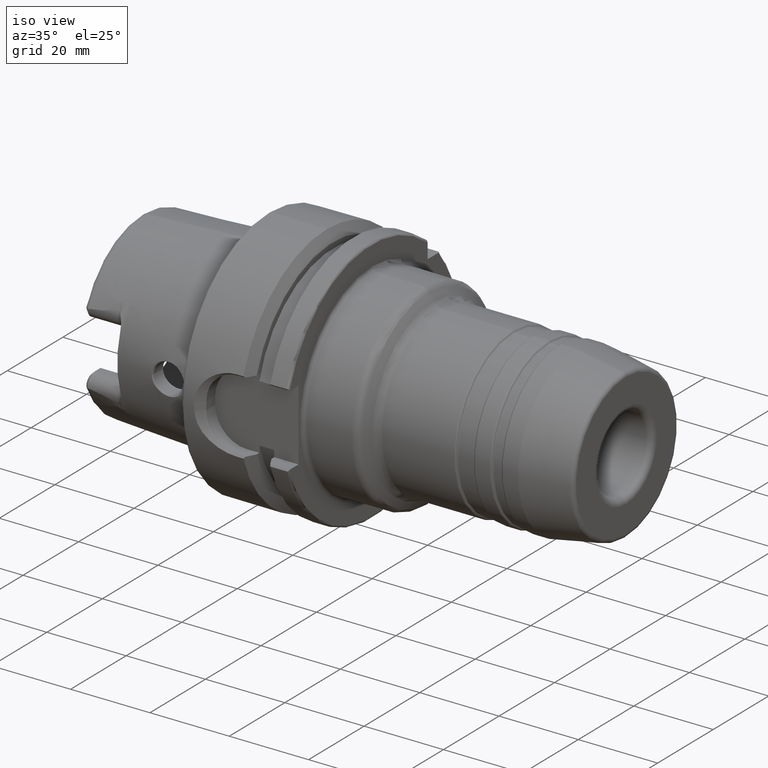
[diagram: clean part render]
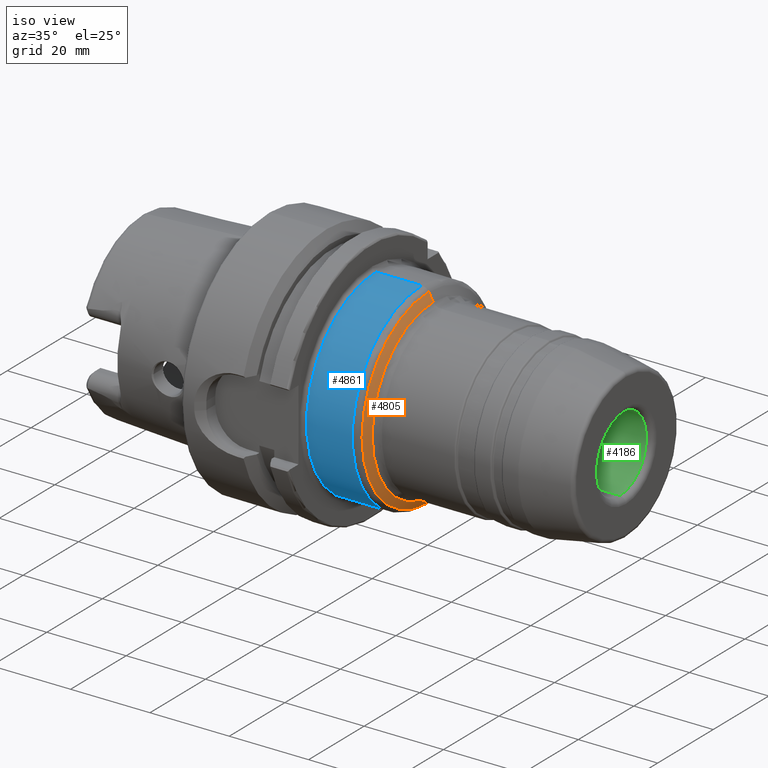
[diagram: same view with three faces highlighted in distinct colors, each labeled with its STEP entity id]
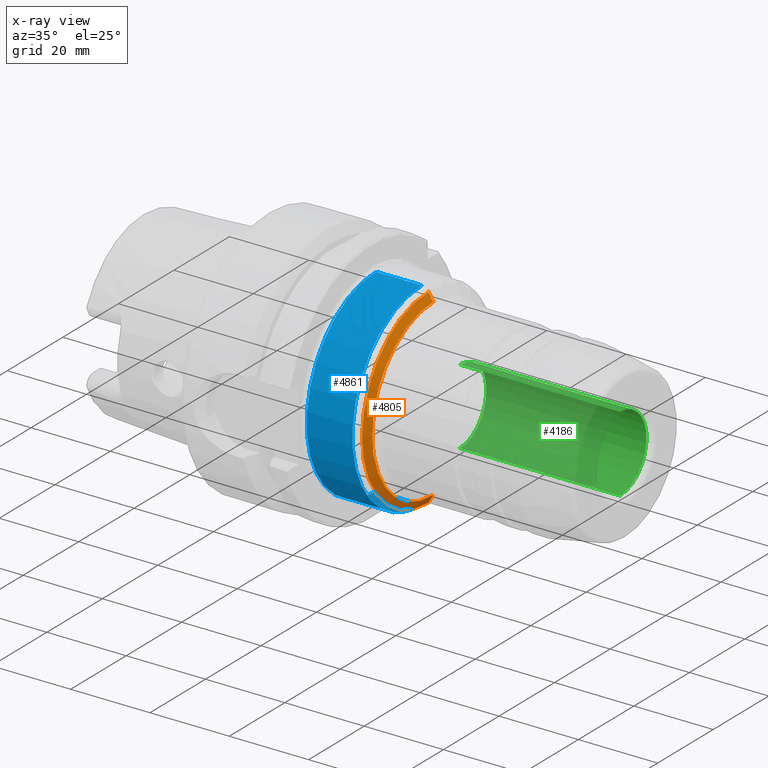
[diagram: x-ray of the same camera — body ghosted, the three highlighted faces saturated]
A machine part, iso view with three faces highlighted in distinct colors.
The next image is the same camera in x-ray (body ghosted, the three faces saturated) — at least one of them is partly hidden behind the body in this view.
Their STEP definitions:

[orange] entity #4805 — the highlighted conical surface has half-angle 60 deg.
#963=DIRECTION('',(-5.000000000001E-1,0.E0,-8.660254037844E-1));
#964=VECTOR('',#963,2.309401076759E0);
#965=CARTESIAN_POINT('',(4.142264973081E1,0.E0,-2.2E1));
#966=LINE('',#965,#964);
#967=DIRECTION('',(-5.000000000001E-1,0.E0,8.660254037844E-1));
#968=VECTOR('',#967,2.309401076759E0);
#969=CARTESIAN_POINT('',(4.142264973081E1,0.E0,2.2E1));
#970=LINE('',#969,#968);
#971=CARTESIAN_POINT('',(4.142264973081E1,0.E0,0.E0));
#972=DIRECTION('',(-1.E0,0.E0,0.E0));
#973=DIRECTION('',(0.E0,0.E0,-1.E0));
#974=AXIS2_PLACEMENT_3D('',#971,#972,#973);
#996=CARTESIAN_POINT('',(4.026794919243E1,0.E0,0.E0));
#997=DIRECTION('',(-1.E0,0.E0,0.E0));
#998=DIRECTION('',(0.E0,0.E0,-1.E0));
#999=AXIS2_PLACEMENT_3D('',#996,#997,#998);
#3427=CARTESIAN_POINT('',(4.142264973081E1,0.E0,-2.2E1));
#3428=VERTEX_POINT('',#3427);
#3429=CARTESIAN_POINT('',(4.026794919243E1,0.E0,-2.4E1));
#3430=VERTEX_POINT('',#3429);
#3487=CARTESIAN_POINT('',(4.142264973081E1,0.E0,2.2E1));
#3488=VERTEX_POINT('',#3487);
#3489=CARTESIAN_POINT('',(4.026794919243E1,0.E0,2.4E1));
#3490=VERTEX_POINT('',#3489);
#4791=CARTESIAN_POINT('',(4.084529946162E1,0.E0,0.E0));
#4792=DIRECTION('',(-1.E0,0.E0,0.E0));
#4793=DIRECTION('',(0.E0,0.E0,-1.E0));
#4794=AXIS2_PLACEMENT_3D('',#4791,#4792,#4793);
#4795=CONICAL_SURFACE('',#4794,2.3E1,5.999999999999E1);
#4797=ORIENTED_EDGE('',*,*,#4796,.T.);
#4799=ORIENTED_EDGE('',*,*,#4798,.T.);
#4801=ORIENTED_EDGE('',*,*,#4800,.F.);
#4802=ORIENTED_EDGE('',*,*,#4784,.F.);
#4803=EDGE_LOOP('',(#4797,#4799,#4801,#4802));
#4804=FACE_OUTER_BOUND('',#4803,.F.);
#4805=ADVANCED_FACE('',(#4804),#4795,.T.);
#975=CIRCLE('',#974,2.2E1);
#1000=CIRCLE('',#999,2.4E1);
#4784=EDGE_CURVE('',#3428,#3488,#975,.T.);
#4796=EDGE_CURVE('',#3428,#3430,#966,.T.);
#4798=EDGE_CURVE('',#3430,#3490,#1000,.T.);
#4800=EDGE_CURVE('',#3488,#3490,#970,.T.);

[blue] entity #4861 — the highlighted cylindrical surface (partial cylindrical patch) has radius 25 mm, axis along (1, 0, 0).
#1001=CARTESIAN_POINT('',(2.7E1,0.E0,0.E0));
#1002=DIRECTION('',(1.E0,0.E0,0.E0));
#1003=DIRECTION('',(0.E0,0.E0,1.E0));
#1004=AXIS2_PLACEMENT_3D('',#1001,#1002,#1003);
#1006=DIRECTION('',(-1.E0,-1.509286293307E-12,0.E0));
#1007=VECTOR('',#1006,1.153589838486E1);
#1008=CARTESIAN_POINT('',(3.853589838486E1,0.E0,2.5E1));
#1009=LINE('',#1008,#1007);
#1010=CARTESIAN_POINT('',(3.853589838486E1,0.E0,0.E0));
#1011=DIRECTION('',(-1.E0,0.E0,0.E0));
#1012=DIRECTION('',(0.E0,0.E0,-1.E0));
#1013=AXIS2_PLACEMENT_3D('',#1010,#1011,#1012);
#1015=DIRECTION('',(-1.E0,1.509219943533E-12,0.E0));
#1016=VECTOR('',#1015,1.153589838486E1);
#1017=CARTESIAN_POINT('',(3.853589838486E1,0.E0,-2.5E1));
#1018=LINE('',#1017,#1016);
#3431=CARTESIAN_POINT('',(3.853589838486E1,0.E0,-2.5E1));
#3432=VERTEX_POINT('',#3431);
#3491=CARTESIAN_POINT('',(3.853589838486E1,0.E0,2.5E1));
#3492=VERTEX_POINT('',#3491);
#3521=CARTESIAN_POINT('',(2.7E1,0.E0,2.5E1));
#3522=CARTESIAN_POINT('',(2.7E1,0.E0,-2.5E1));
#3523=VERTEX_POINT('',#3521);
#3524=VERTEX_POINT('',#3522);
#4847=CARTESIAN_POINT('',(0.E0,0.E0,0.E0));
#4848=DIRECTION('',(1.E0,0.E0,0.E0));
#4849=DIRECTION('',(0.E0,0.E0,1.E0));
#4850=AXIS2_PLACEMENT_3D('',#4847,#4848,#4849);
#4851=CYLINDRICAL_SURFACE('',#4850,2.5E1);
#4853=ORIENTED_EDGE('',*,*,#4852,.F.);
#4855=ORIENTED_EDGE('',*,*,#4854,.F.);
#4856=ORIENTED_EDGE('',*,*,#4840,.F.);
#4858=ORIENTED_EDGE('',*,*,#4857,.T.);
#4859=EDGE_LOOP('',(#4853,#4855,#4856,#4858));
#4860=FACE_OUTER_BOUND('',#4859,.F.);
#4861=ADVANCED_FACE('',(#4860),#4851,.T.);
#1005=CIRCLE('',#1004,2.5E1);
#1014=CIRCLE('',#1013,2.5E1);
#4840=EDGE_CURVE('',#3432,#3492,#1014,.T.);
#4852=EDGE_CURVE('',#3523,#3524,#1005,.T.);
#4854=EDGE_CURVE('',#3492,#3523,#1009,.T.);
#4857=EDGE_CURVE('',#3432,#3524,#1018,.T.);

[green] entity #4186 — the highlighted cylindrical surface (partial cylindrical patch) has radius 9.525 mm, axis along (1, 0, 0).
#535=DIRECTION('',(1.E0,0.E0,0.E0));
#536=VECTOR('',#535,4.037009618943E1);
#537=CARTESIAN_POINT('',(4.812990381056E1,0.E0,-9.525E0));
#538=LINE('',#537,#536);
#539=DIRECTION('',(1.E0,0.E0,0.E0));
#540=VECTOR('',#539,4.037009618943E1);
#541=CARTESIAN_POINT('',(4.812990381056E1,0.E0,9.525E0));
#542=LINE('',#541,#540);
#548=CARTESIAN_POINT('',(4.812990381056E1,0.E0,0.E0));
#549=DIRECTION('',(1.E0,0.E0,0.E0));
#550=DIRECTION('',(0.E0,0.E0,-1.E0));
#551=AXIS2_PLACEMENT_3D('',#548,#549,#550);
#553=CARTESIAN_POINT('',(8.85E1,0.E0,0.E0));
#554=DIRECTION('',(1.E0,0.E0,0.E0));
#555=DIRECTION('',(0.E0,0.E0,-1.E0));
#556=AXIS2_PLACEMENT_3D('',#553,#554,#555);
#3381=CARTESIAN_POINT('',(4.812990381056E1,0.E0,-9.525E0));
#3382=VERTEX_POINT('',#3381);
#3383=CARTESIAN_POINT('',(8.85E1,0.E0,-9.525E0));
#3384=VERTEX_POINT('',#3383);
#3441=CARTESIAN_POINT('',(4.812990381056E1,0.E0,9.525E0));
#3442=VERTEX_POINT('',#3441);
#3443=CARTESIAN_POINT('',(8.85E1,0.E0,9.525E0));
#3444=VERTEX_POINT('',#3443);
#4174=CARTESIAN_POINT('',(0.E0,0.E0,0.E0));
#4175=DIRECTION('',(1.E0,0.E0,0.E0));
#4176=DIRECTION('',(0.E0,0.E0,1.E0));
#4177=AXIS2_PLACEMENT_3D('',#4174,#4175,#4176);
#4178=CYLINDRICAL_SURFACE('',#4177,9.525E0);
#4179=ORIENTED_EDGE('',*,*,#4164,.F.);
#4180=ORIENTED_EDGE('',*,*,#4141,.T.);
#4181=ORIENTED_EDGE('',*,*,#4168,.T.);
#4183=ORIENTED_EDGE('',*,*,#4182,.F.);
#4184=EDGE_LOOP('',(#4179,#4180,#4181,#4183));
#4185=FACE_OUTER_BOUND('',#4184,.F.);
#4186=ADVANCED_FACE('',(#4185),#4178,.F.);
#552=CIRCLE('',#551,9.525E0);
#557=CIRCLE('',#556,9.525E0);
#4141=EDGE_CURVE('',#3382,#3442,#552,.T.);
#4164=EDGE_CURVE('',#3382,#3384,#538,.T.);
#4168=EDGE_CURVE('',#3442,#3444,#542,.T.);
#4182=EDGE_CURVE('',#3384,#3444,#557,.T.);